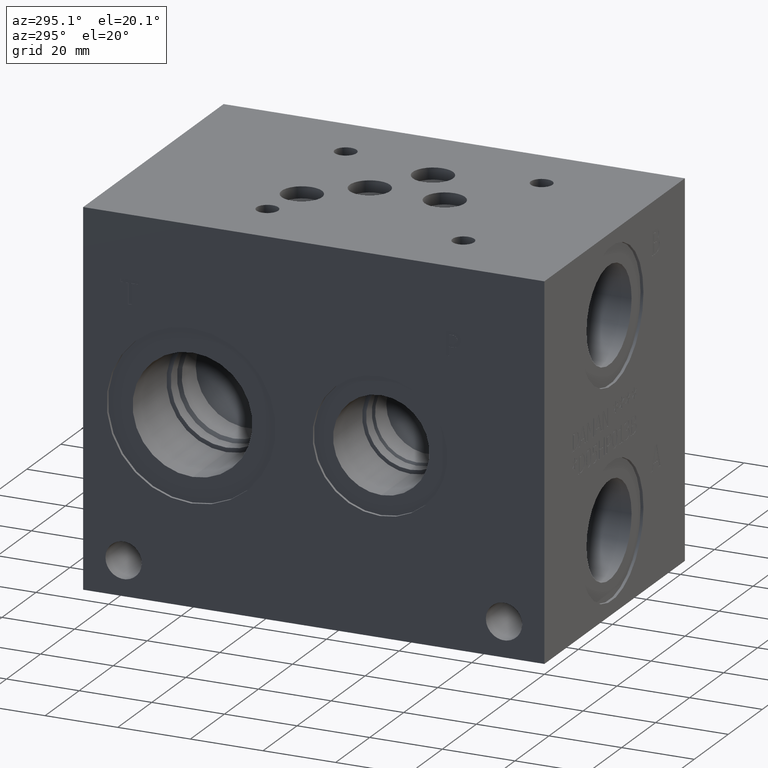
[diagram: clean part render]
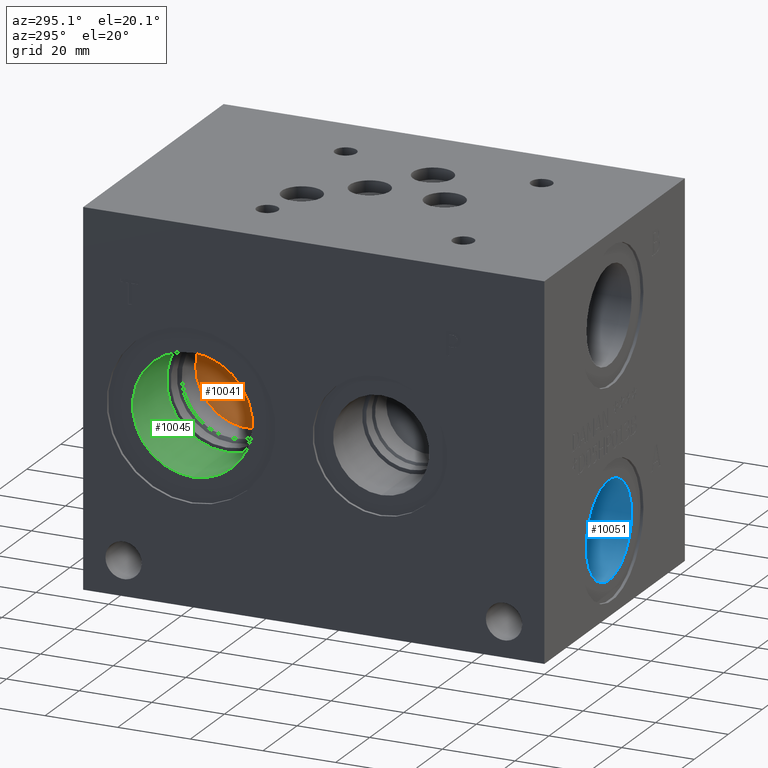
[diagram: same view with three faces highlighted in distinct colors, each labeled with its STEP entity id]
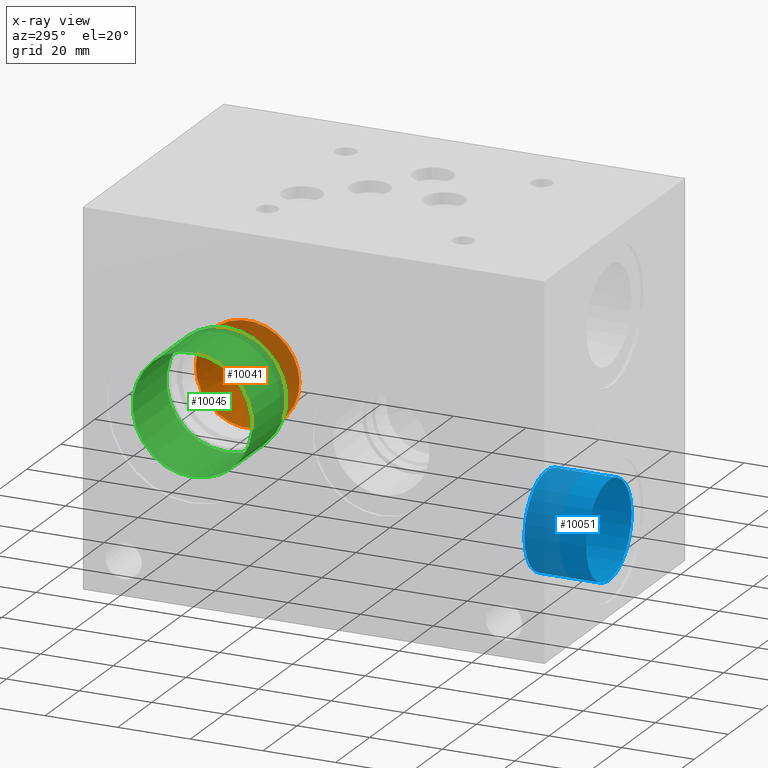
[diagram: x-ray of the same camera — body ghosted, the three highlighted faces saturated]
A machine part, auxiliary view with three faces highlighted in distinct colors.
The next image is the same camera in x-ray (body ghosted, the three faces saturated) — at least one of them is partly hidden behind the body in this view.
Their STEP definitions:

[orange] entity #10041 — the highlighted conical surface has half-angle 60 deg.
#68=CONICAL_SURFACE('',#10526,7.14375,1.0471975511966);
#127=CIRCLE('',#10465,0.209391036080167);
#165=CIRCLE('',#10527,14.2875);
#166=CIRCLE('',#10528,14.2875);
#1105=FACE_OUTER_BOUND('',#1677,.T.);
#1677=EDGE_LOOP('',(#8767,#8768,#8769,#8770,#8771));
#2679=LINE('',#16955,#3649);
#3649=VECTOR('',#12434,7.14375);
#4756=VERTEX_POINT('',#16832);
#4796=VERTEX_POINT('',#16952);
#4797=VERTEX_POINT('',#16953);
#6098=EDGE_CURVE('',#4756,#4756,#127,.T.);
#6153=EDGE_CURVE('',#4796,#4797,#165,.T.);
#6154=EDGE_CURVE('',#4797,#4756,#2679,.T.);
#6155=EDGE_CURVE('',#4797,#4796,#166,.T.);
#8767=ORIENTED_EDGE('',*,*,#6153,.T.);
#8768=ORIENTED_EDGE('',*,*,#6154,.T.);
#8769=ORIENTED_EDGE('',*,*,#6098,.T.);
#8770=ORIENTED_EDGE('',*,*,#6154,.F.);
#8771=ORIENTED_EDGE('',*,*,#6155,.T.);
#10041=ADVANCED_FACE('',(#1105),#68,.F.);
#10465=AXIS2_PLACEMENT_3D('',#16834,#12291,#12292);
#10526=AXIS2_PLACEMENT_3D('',#16951,#12430,#12431);
#10527=AXIS2_PLACEMENT_3D('',#16954,#12432,#12433);
#10528=AXIS2_PLACEMENT_3D('',#16956,#12435,#12436);
#12291=DIRECTION('center_axis',(1.,0.,0.));
#12292=DIRECTION('ref_axis',(0.,1.,0.));
#12430=DIRECTION('center_axis',(-1.,0.,0.));
#12431=DIRECTION('ref_axis',(0.,1.,0.));
#12432=DIRECTION('center_axis',(-1.,0.,0.));
#12433=DIRECTION('ref_axis',(0.,1.,0.));
#12434=DIRECTION('',(0.5,0.866025403784439,-1.06057523872491E-16));
#12435=DIRECTION('center_axis',(-1.,0.,0.));
#12436=DIRECTION('ref_axis',(0.,1.,0.));
#16832=CARTESIAN_POINT('',(41.275,97.0472089639198,50.8));
#16834=CARTESIAN_POINT('Origin',(41.275,97.2566,50.8));
#16951=CARTESIAN_POINT('Origin',(37.2714459855234,97.2566,50.8));
#16952=CARTESIAN_POINT('',(33.147,111.5441,50.8));
#16953=CARTESIAN_POINT('',(33.147,82.9691,50.8));
#16954=CARTESIAN_POINT('Origin',(33.147,97.2566,50.8));
#16955=CARTESIAN_POINT('',(37.2714459855234,90.11285,50.8));
#16956=CARTESIAN_POINT('Origin',(33.147,97.2566,50.8));

[blue] entity #10051 — the highlighted cylindrical surface (bore or boss wall) has radius 13.2715 mm, axis along (0, 1, 0).
#39=CYLINDRICAL_SURFACE('',#10554,13.2715);
#181=CIRCLE('',#10552,13.2715);
#182=CIRCLE('',#10553,13.2715);
#183=CIRCLE('',#10555,13.2715);
#184=CIRCLE('',#10556,13.2715);
#1115=FACE_OUTER_BOUND('',#1690,.T.);
#1690=EDGE_LOOP('',(#8820,#8821,#8822,#8823,#8824,#8825));
#2686=LINE('',#17006,#3656);
#3656=VECTOR('',#12495,13.2715);
#4812=VERTEX_POINT('',#17000);
#4813=VERTEX_POINT('',#17001);
#4814=VERTEX_POINT('',#17005);
#4815=VERTEX_POINT('',#17007);
#6176=EDGE_CURVE('',#4812,#4813,#181,.T.);
#6177=EDGE_CURVE('',#4813,#4812,#182,.T.);
#6178=EDGE_CURVE('',#4813,#4814,#2686,.T.);
#6179=EDGE_CURVE('',#4814,#4815,#183,.T.);
#6180=EDGE_CURVE('',#4815,#4814,#184,.T.);
#8820=ORIENTED_EDGE('',*,*,#6176,.F.);
#8821=ORIENTED_EDGE('',*,*,#6177,.F.);
#8822=ORIENTED_EDGE('',*,*,#6178,.T.);
#8823=ORIENTED_EDGE('',*,*,#6179,.T.);
#8824=ORIENTED_EDGE('',*,*,#6180,.T.);
#8825=ORIENTED_EDGE('',*,*,#6178,.F.);
#10051=ADVANCED_FACE('',(#1115),#39,.F.);
#10552=AXIS2_PLACEMENT_3D('',#17002,#12489,#12490);
#10553=AXIS2_PLACEMENT_3D('',#17003,#12491,#12492);
#10554=AXIS2_PLACEMENT_3D('',#17004,#12493,#12494);
#10555=AXIS2_PLACEMENT_3D('',#17008,#12496,#12497);
#10556=AXIS2_PLACEMENT_3D('',#17009,#12498,#12499);
#12489=DIRECTION('center_axis',(0.,1.,0.));
#12490=DIRECTION('ref_axis',(1.,0.,0.));
#12491=DIRECTION('center_axis',(0.,1.,0.));
#12492=DIRECTION('ref_axis',(1.,0.,0.));
#12493=DIRECTION('center_axis',(0.,1.,0.));
#12494=DIRECTION('ref_axis',(1.,0.,0.));
#12495=DIRECTION('',(0.,1.,0.));
#12496=DIRECTION('center_axis',(0.,1.,0.));
#12497=DIRECTION('ref_axis',(1.,0.,0.));
#12498=DIRECTION('center_axis',(0.,1.,0.));
#12499=DIRECTION('ref_axis',(1.,0.,0.));
#17000=CARTESIAN_POINT('',(52.9463,0.7874,22.225));
#17001=CARTESIAN_POINT('',(26.4033,0.7874,22.225));
#17002=CARTESIAN_POINT('Origin',(39.6748,0.7874,22.225));
#17003=CARTESIAN_POINT('Origin',(39.6748,0.7874,22.225));
#17004=CARTESIAN_POINT('Origin',(39.6748,9.3345,22.225));
#17005=CARTESIAN_POINT('',(26.4033,17.8816,22.225));
#17006=CARTESIAN_POINT('',(26.4033,9.3345,22.225));
#17007=CARTESIAN_POINT('',(52.9463,17.8816,22.225));
#17008=CARTESIAN_POINT('Origin',(39.6748,17.8816,22.225));
#17009=CARTESIAN_POINT('Origin',(39.6748,17.8816,22.225));

[green] entity #10045 — the highlighted cylindrical surface (bore or boss wall) has radius 16.5 mm, axis along (1, 0, 0).
#36=CYLINDRICAL_SURFACE('',#10538,16.5);
#171=CIRCLE('',#10536,16.5);
#172=CIRCLE('',#10537,16.5);
#173=CIRCLE('',#10539,16.5);
#174=CIRCLE('',#10540,16.5);
#1109=FACE_OUTER_BOUND('',#1682,.T.);
#1682=EDGE_LOOP('',(#8788,#8789,#8790,#8791,#8792,#8793));
#2682=LINE('',#16976,#3652);
#3652=VECTOR('',#12459,16.5);
#4802=VERTEX_POINT('',#16970);
#4803=VERTEX_POINT('',#16971);
#4804=VERTEX_POINT('',#16975);
#4805=VERTEX_POINT('',#16977);
#6162=EDGE_CURVE('',#4802,#4803,#171,.T.);
#6163=EDGE_CURVE('',#4803,#4802,#172,.T.);
#6164=EDGE_CURVE('',#4803,#4804,#2682,.T.);
#6165=EDGE_CURVE('',#4804,#4805,#173,.T.);
#6166=EDGE_CURVE('',#4805,#4804,#174,.T.);
#8788=ORIENTED_EDGE('',*,*,#6162,.F.);
#8789=ORIENTED_EDGE('',*,*,#6163,.F.);
#8790=ORIENTED_EDGE('',*,*,#6164,.T.);
#8791=ORIENTED_EDGE('',*,*,#6165,.T.);
#8792=ORIENTED_EDGE('',*,*,#6166,.T.);
#8793=ORIENTED_EDGE('',*,*,#6164,.F.);
#10045=ADVANCED_FACE('',(#1109),#36,.F.);
#10536=AXIS2_PLACEMENT_3D('',#16972,#12453,#12454);
#10537=AXIS2_PLACEMENT_3D('',#16973,#12455,#12456);
#10538=AXIS2_PLACEMENT_3D('',#16974,#12457,#12458);
#10539=AXIS2_PLACEMENT_3D('',#16978,#12460,#12461);
#10540=AXIS2_PLACEMENT_3D('',#16979,#12462,#12463);
#12453=DIRECTION('center_axis',(1.,0.,0.));
#12454=DIRECTION('ref_axis',(0.,0.,-1.));
#12455=DIRECTION('center_axis',(1.,0.,0.));
#12456=DIRECTION('ref_axis',(0.,0.,-1.));
#12457=DIRECTION('center_axis',(1.,0.,0.));
#12458=DIRECTION('ref_axis',(0.,0.,1.));
#12459=DIRECTION('',(1.,0.,0.));
#12460=DIRECTION('center_axis',(1.,0.,0.));
#12461=DIRECTION('ref_axis',(0.,0.,-1.));
#12462=DIRECTION('center_axis',(1.,0.,0.));
#12463=DIRECTION('ref_axis',(0.,0.,-1.));
#16970=CARTESIAN_POINT('',(0.7874,97.2566,67.3));
#16971=CARTESIAN_POINT('',(0.7874,97.2566,34.3));
#16972=CARTESIAN_POINT('Origin',(0.7874,97.2566,50.8));
#16973=CARTESIAN_POINT('Origin',(0.7874,97.2566,50.8));
#16974=CARTESIAN_POINT('Origin',(10.7315,97.2566,50.8));
#16975=CARTESIAN_POINT('',(20.6756,97.2566,34.3));
#16976=CARTESIAN_POINT('',(10.7315,97.2566,34.3));
#16977=CARTESIAN_POINT('',(20.6756,97.2566,67.3));
#16978=CARTESIAN_POINT('Origin',(20.6756,97.2566,50.8));
#16979=CARTESIAN_POINT('Origin',(20.6756,97.2566,50.8));